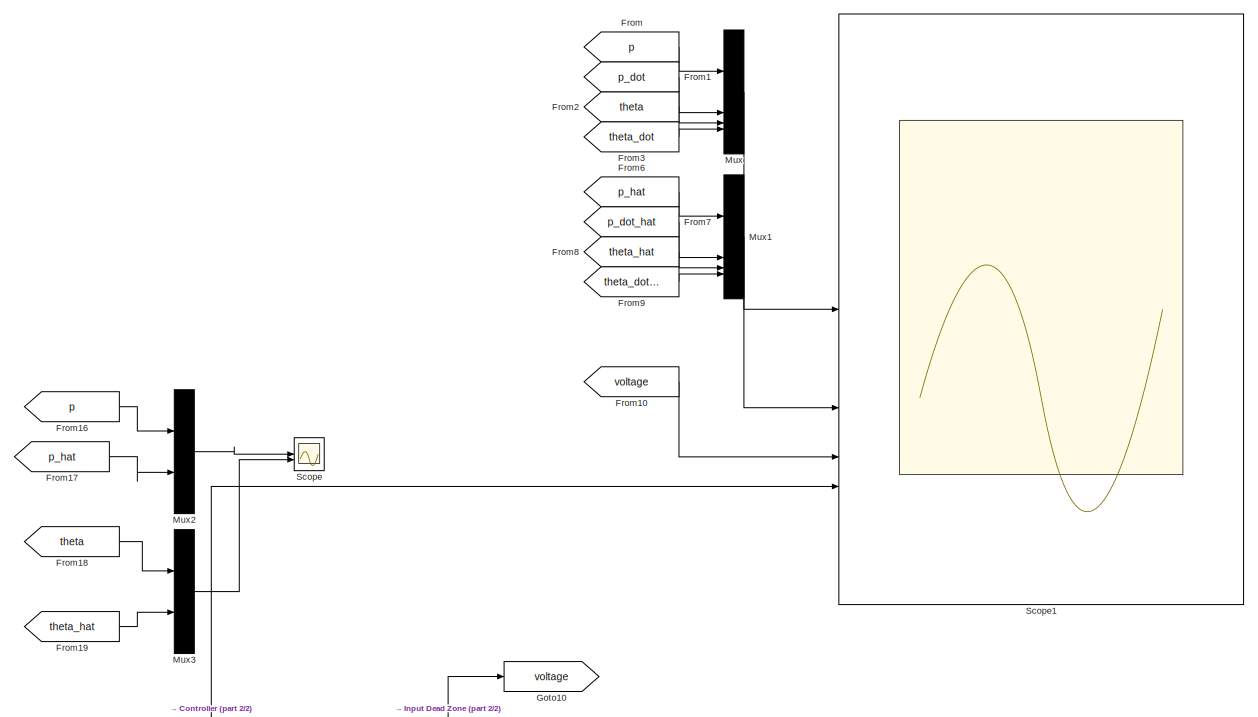
[diagram: root canvas - part 1/2, full width, top band]
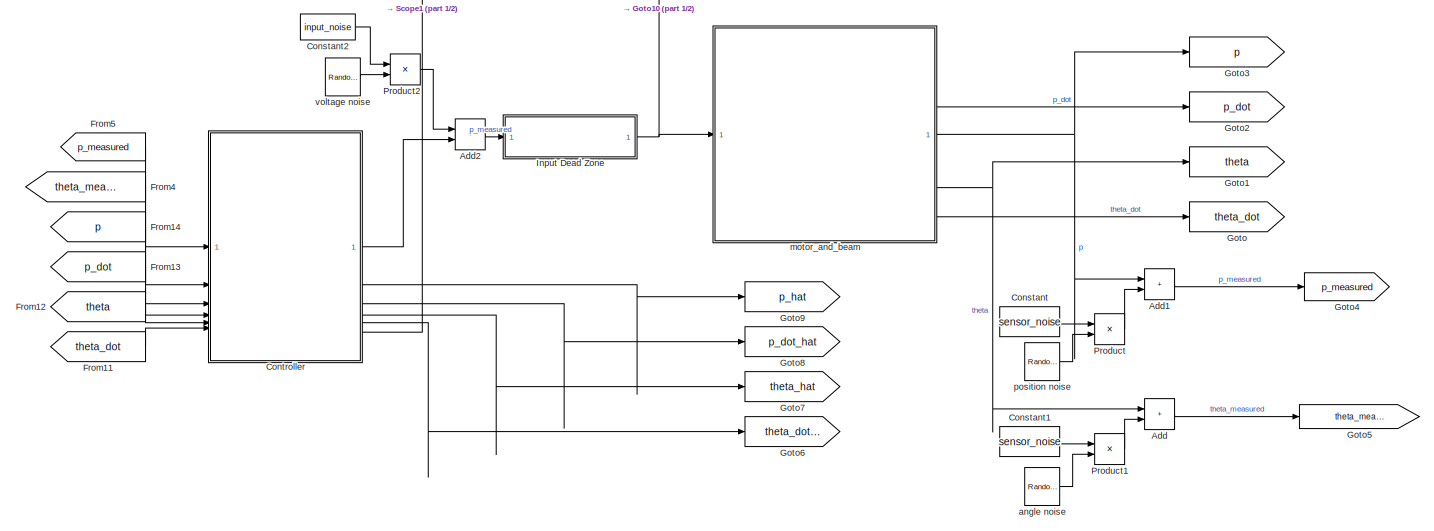
[diagram: root canvas - part 2/2, full width, bottom band]
MODEL slx_4e6783f6357e
KIND model
CONFIG AbsTol = auto
CONFIG EnableMultiTasking = off
CONFIG FixedStep = auto
CONFIG MaxStep = 5.0E-5
CONFIG MinStep = auto
CONFIG RelTol = 1e-3
CONFIG SampleTimeConstraint = Unconstrained
CONFIG SolverName = VariableStepAuto
CONFIG StartTime = 0.0
CONFIG StopTime = 10.0
BLOCK [Sum] Add
  IconShape = rectangular
BLOCK [Sum] Add1
  IconShape = rectangular
BLOCK [Sum] Add2
  IconShape = rectangular
BLOCK [Constant] Constant
  Value = sensor_noise
BLOCK [Constant] Constant1
  Value = sensor_noise
BLOCK [Constant] Constant2
  Value = input_noise
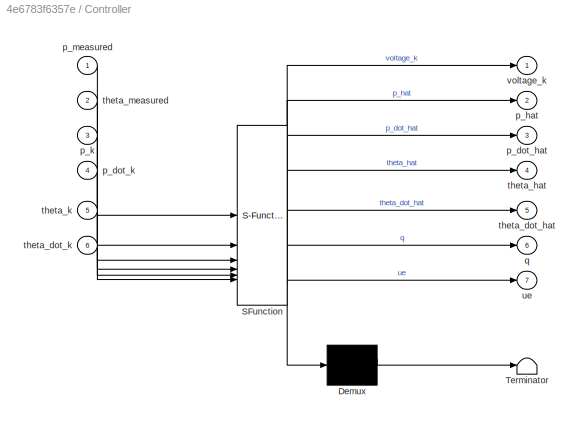
BLOCK [SubSystem] Controller
  ErrorFcn = Stateflow.Translate.translate
  PermitHierarchicalResolution = ExplicitOnly
  SFBlockType = MATLAB Function
  SystemSampleTime = Ts
  TreatAsAtomicUnit = on
BLOCK [Demux] Controller/ Demux 
  Outputs = 1
BLOCK [S-Function] Controller/ SFunction 
  EnableBusSupport = on
  FunctionName = sf_sfun
  Parameters = A,A_augmented,B,B_augmented,C,CTLR,Cs,Cs_integral_action,K,K_sfc_integral_action,Kf,Kf_and_Ki,L,OBS,P_0,Q,R,gamma,gamma_integral_action,input_limit,xo_hat
  PortCounts = [6 8]
  SFcnIsStateOwnerBlock = off
  SFunctionDeploymentMode = off
  Tag = Stateflow S-Function 2
BLOCK [Terminator] Controller/ Terminator 
BLOCK [Outport] Controller/p_dot_hat
  Port = 3
BLOCK [Inport] Controller/p_dot_k
  Port = 4
BLOCK [Outport] Controller/p_hat
  Port = 2
BLOCK [Inport] Controller/p_k
  Port = 3
BLOCK [Inport] Controller/p_measured
BLOCK [Outport] Controller/q
  Port = 6
BLOCK [Outport] Controller/theta_dot_hat
  Port = 5
BLOCK [Inport] Controller/theta_dot_k
  Port = 6
BLOCK [Outport] Controller/theta_hat
  Port = 4
BLOCK [Inport] Controller/theta_k
  Port = 5
BLOCK [Inport] Controller/theta_measured
  Port = 2
BLOCK [Outport] Controller/ue
  Port = 7
BLOCK [Outport] Controller/voltage_k
  VectorParamsAs1DForOutWhenUnconnected = off
BLOCK [From] From
  GotoTag = p
BLOCK [From] From1
  GotoTag = p_dot
BLOCK [From] From10
  GotoTag = voltage
BLOCK [From] From11
  GotoTag = theta_dot
BLOCK [From] From12
  GotoTag = theta
BLOCK [From] From13
  GotoTag = p_dot
BLOCK [From] From14
  GotoTag = p
BLOCK [From] From16
  GotoTag = p
BLOCK [From] From17
  GotoTag = p_hat
BLOCK [From] From18
  GotoTag = theta
BLOCK [From] From19
  GotoTag = theta_hat
BLOCK [From] From2
  GotoTag = theta
BLOCK [From] From3
  GotoTag = theta_dot
BLOCK [From] From4
  GotoTag = theta_measured
BLOCK [From] From5
  GotoTag = p_measured
BLOCK [From] From6
  GotoTag = p_hat
BLOCK [From] From7
  GotoTag = p_dot_hat
BLOCK [From] From8
  GotoTag = theta_hat
BLOCK [From] From9
  GotoTag = theta_dot_hat
BLOCK [Goto] Goto
  GotoTag = theta_dot
BLOCK [Goto] Goto1
  GotoTag = theta
BLOCK [Goto] Goto10
  GotoTag = voltage
BLOCK [Goto] Goto2
  GotoTag = p_dot
BLOCK [Goto] Goto3
  GotoTag = p
BLOCK [Goto] Goto4
  GotoTag = p_measured
BLOCK [Goto] Goto5
  GotoTag = theta_measured
BLOCK [Goto] Goto6
  GotoTag = theta_dot_hat
BLOCK [Goto] Goto7
  GotoTag = theta_hat
BLOCK [Goto] Goto8
  GotoTag = p_dot_hat
BLOCK [Goto] Goto9
  GotoTag = p_hat
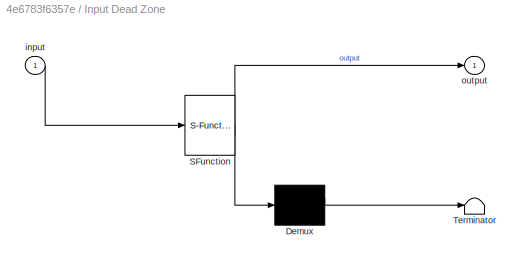
BLOCK [SubSystem] Input Dead Zone
  ErrorFcn = Stateflow.Translate.translate
  PermitHierarchicalResolution = ExplicitOnly
  SFBlockType = MATLAB Function
  TreatAsAtomicUnit = on
BLOCK [Demux] Input Dead Zone/ Demux 
  Outputs = 1
BLOCK [S-Function] Input Dead Zone/ SFunction 
  EnableBusSupport = on
  FunctionName = sf_sfun
  Parameters = dead_zone
  PortCounts = [1 2]
  SFcnIsStateOwnerBlock = off
  SFunctionDeploymentMode = off
  Tag = Stateflow S-Function 1
BLOCK [Terminator] Input Dead Zone/ Terminator 
BLOCK [Inport] Input Dead Zone/input
BLOCK [Outport] Input Dead Zone/output
  VectorParamsAs1DForOutWhenUnconnected = off
BLOCK [Mux] Mux
  DisplayOption = bar
BLOCK [Mux] Mux1
  DisplayOption = bar
BLOCK [Mux] Mux2
  DisplayOption = bar
  Inputs = 2
BLOCK [Mux] Mux3
  DisplayOption = bar
  Inputs = 2
BLOCK [Product] Product
BLOCK [Product] Product1
BLOCK [Product] Product2
BLOCK [Scope] Scope
  Floating = off
  NumInputPorts = 2
  ScopeSpecificationString = Simulink.scopes.TimeScopeBlockCfg('CurrentConfiguration', extmgr.ConfigurationSet(extmgr.Configuration('Core','General UI',true),extmgr.Configuration('Core','Source UI',true),extmgr.Configuration('Sources','WiredSimulink',true,'DataLoggingVariableName','ScopeData1'),extmgr.Configuration('Visuals','Time Domain',true,'SerializedDisplays',{struct('MinYLimReal','-0.68932','MaxYLimReal','0.81153','YLab...<+1471ch>
BLOCK [Scope] Scope1
  Floating = off
  NumInputPorts = 4
  ScopeSpecificationString = Simulink.scopes.TimeScopeBlockCfg('CurrentConfiguration', extmgr.ConfigurationSet(extmgr.Configuration('Core','General UI',true),extmgr.Configuration('Core','Source UI',true),extmgr.Configuration('Sources','WiredSimulink',true,'DataLoggingVariableName','ScopeData1'),extmgr.Configuration('Visuals','Time Domain',true,'SerializedDisplays',{struct('MinYLimReal','-0.32383','MaxYLimReal','0.63211','YLab...<+3859ch>
BLOCK [Reference] angle noise  REF=dspsrcs4/Random
Source
  SourceBlock = dspsrcs4/Random\nSource
  SourceType = Random Source
  UserDataPersistent = on
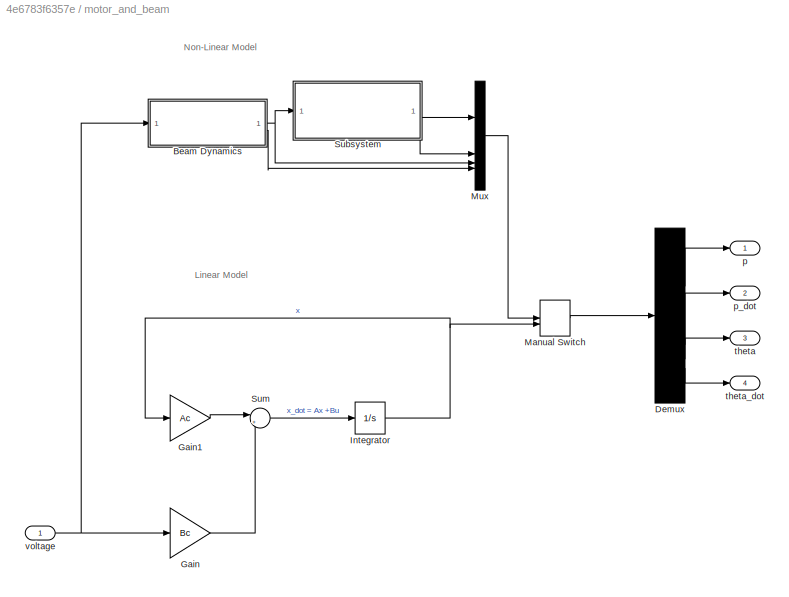
BLOCK [SubSystem] motor_and_beam
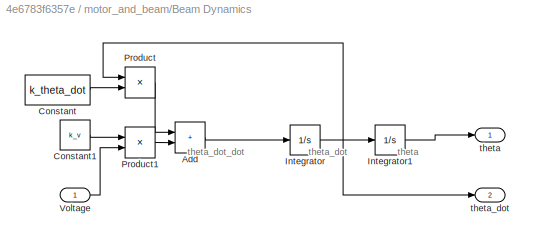
BLOCK [SubSystem] motor_and_beam/Beam Dynamics
BLOCK [Sum] motor_and_beam/Beam Dynamics/Add
  IconShape = rectangular
BLOCK [Constant] motor_and_beam/Beam Dynamics/Constant
  Value = k_theta_dot
BLOCK [Constant] motor_and_beam/Beam Dynamics/Constant1
  Value = k_v
BLOCK [Integrator] motor_and_beam/Beam Dynamics/Integrator
  InitialCondition = xo(4)
BLOCK [Integrator] motor_and_beam/Beam Dynamics/Integrator1
  InitialCondition = xo(3)
BLOCK [Product] motor_and_beam/Beam Dynamics/Product
BLOCK [Product] motor_and_beam/Beam Dynamics/Product1
BLOCK [Inport] motor_and_beam/Beam Dynamics/Voltage
BLOCK [Outport] motor_and_beam/Beam Dynamics/theta
BLOCK [Outport] motor_and_beam/Beam Dynamics/theta_dot
  Port = 2
BLOCK [Demux] motor_and_beam/Demux
BLOCK [Gain] motor_and_beam/Gain
  Gain = Bc
  Multiplication = Matrix(K*u)
BLOCK [Gain] motor_and_beam/Gain1
  Gain = Ac
  Multiplication = Matrix(K*u)
BLOCK [Integrator] motor_and_beam/Integrator
  InitialCondition = xo
BLOCK [ManualSwitch] motor_and_beam/Manual Switch
BLOCK [Mux] motor_and_beam/Mux
  DisplayOption = bar
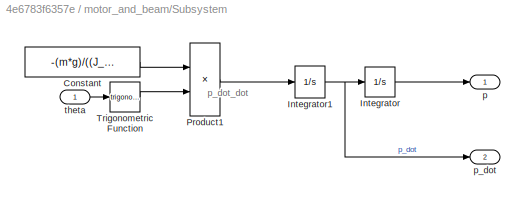
BLOCK [SubSystem] motor_and_beam/Subsystem
BLOCK [Constant] motor_and_beam/Subsystem/Constant
  Value = -(m*g)/((J_b/r^2) + m)
BLOCK [Integrator] motor_and_beam/Subsystem/Integrator
  InitialCondition = xo(1)
BLOCK [Integrator] motor_and_beam/Subsystem/Integrator1
  InitialCondition = xo(2)
BLOCK [Product] motor_and_beam/Subsystem/Product1
BLOCK [Trigonometry] motor_and_beam/Subsystem/Trigonometric Function
BLOCK [Outport] motor_and_beam/Subsystem/p
BLOCK [Outport] motor_and_beam/Subsystem/p_dot
  Port = 2
BLOCK [Inport] motor_and_beam/Subsystem/theta
BLOCK [Sum] motor_and_beam/Sum
  Inputs = |++
BLOCK [Outport] motor_and_beam/p
BLOCK [Outport] motor_and_beam/p_dot
  Port = 2
BLOCK [Outport] motor_and_beam/theta
  Port = 3
BLOCK [Outport] motor_and_beam/theta_dot
  Port = 4
BLOCK [Inport] motor_and_beam/voltage
BLOCK [Reference] position noise  REF=dspsrcs4/Random
Source
  SourceBlock = dspsrcs4/Random\nSource
  SourceType = Random Source
  UserDataPersistent = on
BLOCK [Reference] voltage noise  REF=dspsrcs4/Random
Source
  SourceBlock = dspsrcs4/Random\nSource
  SourceType = Random Source
  UserDataPersistent = on
ANNOTATION motor_and_beam: Linear Model
ANNOTATION motor_and_beam: Non-Linear Model
ANNOTATION motor_and_beam/Beam Dynamics: theta
ANNOTATION motor_and_beam/Beam Dynamics: theta_dot
ANNOTATION motor_and_beam/Beam Dynamics: theta_dot_dot
ANNOTATION motor_and_beam/Subsystem: p_dot_dot
LINE Add1:1 -> Goto4:1
LINE Add2:1 -> Input Dead Zone:1
LINE Add:1 -> Goto5:1
LINE Constant1:1 -> Product1:1
LINE Constant2:1 -> Product2:1
LINE Constant:1 -> Product:1
LINE Controller:1 -> Add2:2
LINE Controller:2 -> Goto9:1
LINE Controller:3 -> Goto8:1
LINE Controller:4 -> Goto7:1
LINE Controller:5 -> Goto6:1
LINE Controller:7 -> Scope1:4
LINE From10:1 -> Scope1:3
LINE From11:1 -> Controller:6
LINE From12:1 -> Controller:5
LINE From13:1 -> Controller:4
LINE From14:1 -> Controller:3
LINE From16:1 -> Mux2:1
LINE From17:1 -> Mux2:2
LINE From18:1 -> Mux3:1
LINE From19:1 -> Mux3:2
LINE From1:1 -> Mux:2
LINE From2:1 -> Mux:3
LINE From3:1 -> Mux:4
LINE From4:1 -> Controller:2
LINE From5:1 -> Controller:1
LINE From6:1 -> Mux1:1
LINE From7:1 -> Mux1:2
LINE From8:1 -> Mux1:3
LINE From9:1 -> Mux1:4
LINE From:1 -> Mux:1
NET Input Dead Zone:1 -> Goto10:1, motor_and_beam:1
LINE Mux1:1 -> Scope1:2
LINE Mux2:1 -> Scope:1
LINE Mux3:1 -> Scope:2
LINE Mux:1 -> Scope1:1
LINE Product1:1 -> Add:2
LINE Product2:1 -> Add2:1
LINE Product:1 -> Add1:2
LINE angle noise:1 -> Product1:2
LINE motor_and_beam/Beam Dynamics/Add:1 -> motor_and_beam/Beam Dynamics/Integrator:1
LINE motor_and_beam/Beam Dynamics/Constant1:1 -> motor_and_beam/Beam Dynamics/Product1:1
LINE motor_and_beam/Beam Dynamics/Constant:1 -> motor_and_beam/Beam Dynamics/Product:2
LINE motor_and_beam/Beam Dynamics/Integrator1:1 -> motor_and_beam/Beam Dynamics/theta:1
NET motor_and_beam/Beam Dynamics/Integrator:1 -> motor_and_beam/Beam Dynamics/Integrator1:1, motor_and_beam/Beam Dynamics/Product:1, motor_and_beam/Beam Dynamics/theta_dot:1
LINE motor_and_beam/Beam Dynamics/Product1:1 -> motor_and_beam/Beam Dynamics/Add:2
LINE motor_and_beam/Beam Dynamics/Product:1 -> motor_and_beam/Beam Dynamics/Add:1
LINE motor_and_beam/Beam Dynamics/Voltage:1 -> motor_and_beam/Beam Dynamics/Product1:2
NET motor_and_beam/Beam Dynamics:1 -> motor_and_beam/Mux:3, motor_and_beam/Subsystem:1
LINE motor_and_beam/Beam Dynamics:2 -> motor_and_beam/Mux:4
LINE motor_and_beam/Demux:1 -> motor_and_beam/p:1
LINE motor_and_beam/Demux:2 -> motor_and_beam/p_dot:1
LINE motor_and_beam/Demux:3 -> motor_and_beam/theta:1
LINE motor_and_beam/Demux:4 -> motor_and_beam/theta_dot:1
LINE motor_and_beam/Gain1:1 -> motor_and_beam/Sum:1
LINE motor_and_beam/Gain:1 -> motor_and_beam/Sum:2
NET motor_and_beam/Integrator:1 -> motor_and_beam/Gain1:1, motor_and_beam/Manual Switch:2
LINE motor_and_beam/Manual Switch:1 -> motor_and_beam/Demux:1
LINE motor_and_beam/Mux:1 -> motor_and_beam/Manual Switch:1
LINE motor_and_beam/Subsystem/Constant:1 -> motor_and_beam/Subsystem/Product1:1
NET motor_and_beam/Subsystem/Integrator1:1 -> motor_and_beam/Subsystem/Integrator:1, motor_and_beam/Subsystem/p_dot:1
LINE motor_and_beam/Subsystem/Integrator:1 -> motor_and_beam/Subsystem/p:1
LINE motor_and_beam/Subsystem/Product1:1 -> motor_and_beam/Subsystem/Integrator1:1
LINE motor_and_beam/Subsystem/Trigonometric Function:1 -> motor_and_beam/Subsystem/Product1:2
LINE motor_and_beam/Subsystem/theta:1 -> motor_and_beam/Subsystem/Trigonometric Function:1
LINE motor_and_beam/Subsystem:1 -> motor_and_beam/Mux:1
LINE motor_and_beam/Subsystem:2 -> motor_and_beam/Mux:2
LINE motor_and_beam/Sum:1 -> motor_and_beam/Integrator:1
NET motor_and_beam/voltage:1 -> motor_and_beam/Beam Dynamics:1, motor_and_beam/Gain:1
NET motor_and_beam:1 -> Add1:1, Goto3:1
LINE motor_and_beam:2 -> Goto2:1
NET motor_and_beam:3 -> Add:1, Goto1:1
LINE motor_and_beam:4 -> Goto:1
LINE position noise:1 -> Product:2
LINE voltage noise:1 -> Product2:2
note: NET lines group one-source signal fan-out (src -> all destinations, sorted); 1:1 wires keep LINE
CHART Input Dead Zone states=1 transitions=1
  STATE_LABEL 'eML_blk_kernel()'
  STATE_LABEL 'SCRIPT:\nfunction output  = DeadZone(input, dead_zone)\n\nif(input > dead_zone(1)) || (input < dead_zone(2))\n    output = input;\nelse\n    output = 0;\nend\nend\n\n'
CHART Controller states=1 transitions=1
  STATE_LABEL 'eML_blk_kernel()'
  STATE_LABEL 'SCRIPT:\nfunction [voltage_k, p_hat, p_dot_hat, theta_hat, theta_dot_hat,q,ue] = Controller(p_measured, theta_measured, p_k, p_dot_k, theta_k, theta_dot_k, xo_hat, OBS, CTLR, input_limit, A, B, C, K, L, Q, R, P_0, Kf, Kf_and_Ki,Cs, gamma,K_sfc_integral_action,Cs_integral_action,gamma_integral_action,A_augmented, B_augmented)\n%% Initialise system and covaraince on first call\npersistent x_hat_k\nif is...<+3218ch>'
CHART  states=0 transitions=0
CHART  states=0 transitions=0
